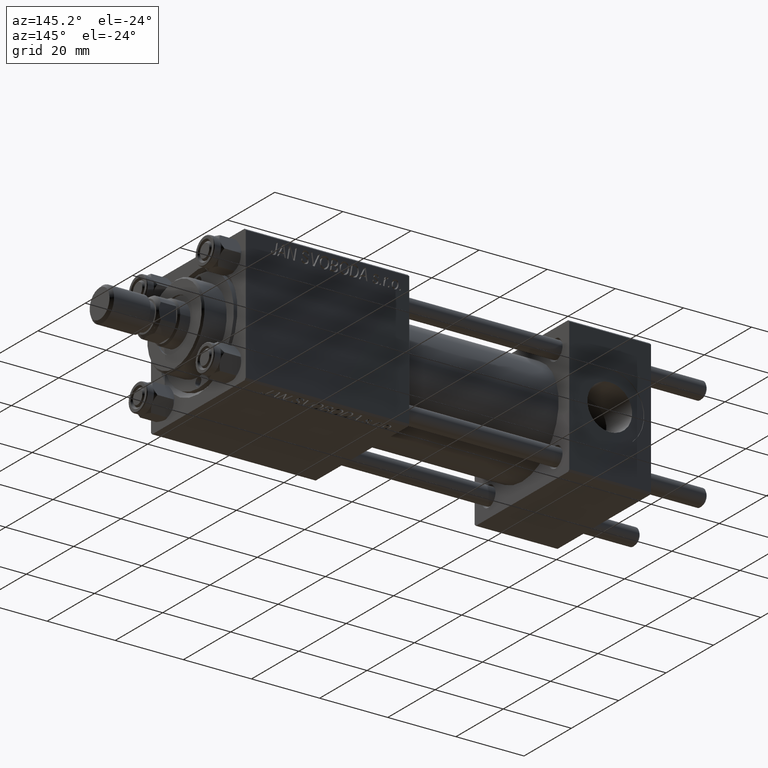
[diagram: clean part render]
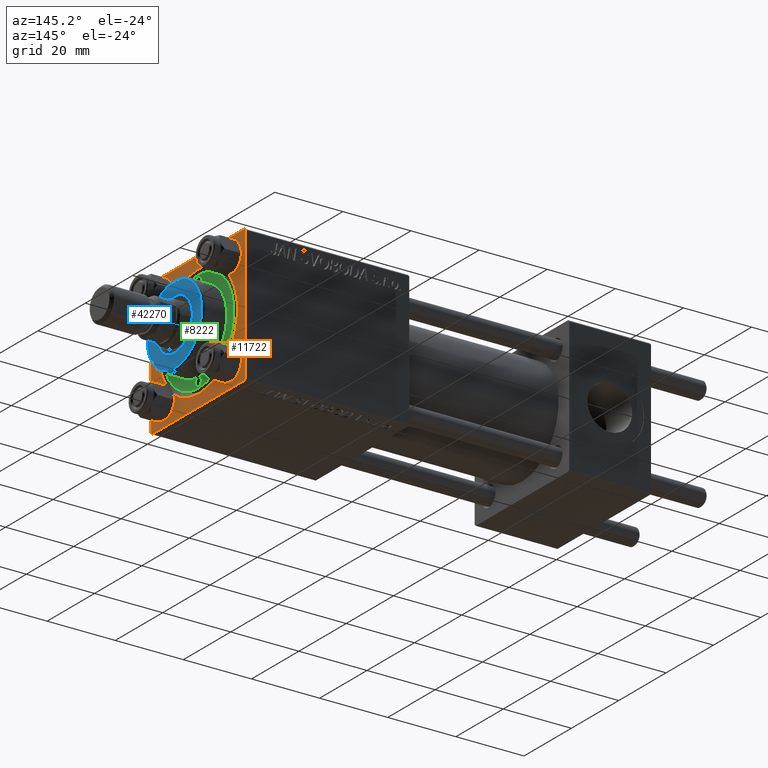
[diagram: same view with three faces highlighted in distinct colors, each labeled with its STEP entity id]
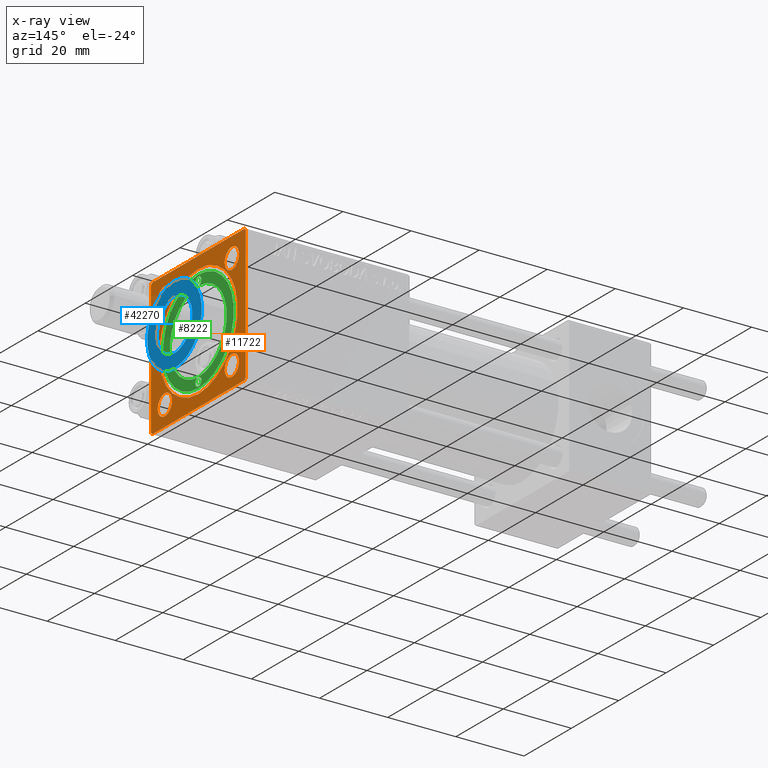
[diagram: x-ray of the same camera — body ghosted, the three highlighted faces saturated]
A machine part, auxiliary view with three faces highlighted in distinct colors.
The next image is the same camera in x-ray (body ghosted, the three faces saturated) — at least one of them is partly hidden behind the body in this view.
Their STEP definitions:

[orange] entity #11722 — the highlighted planar face has unit normal (-1, 0, 0).
#102 = CARTESIAN_POINT ( 'NONE',  ( 119.0000000000000142, 19.99999999999999645, 19.49999999999998579 ) ) ;
#202 = CARTESIAN_POINT ( 'NONE',  ( 119.0000000000000142, -14.15000000000000036, 14.15000000000000036 ) ) ;
#232 = DIRECTION ( 'NONE',  ( -1.000000000000000000, -0.000000000000000000, -0.000000000000000000 ) ) ;
#233 = AXIS2_PLACEMENT_3D ( 'NONE', #3433, #30212, #10837 ) ;
#550 = DIRECTION ( 'NONE',  ( -1.000000000000000000, 0.000000000000000000, -0.000000000000000000 ) ) ;
#1226 = DIRECTION ( 'NONE',  ( 0.000000000000000000, 0.000000000000000000, 1.000000000000000000 ) ) ;
#2215 = LINE ( 'NONE', #14462, #26203 ) ;
#2734 = ORIENTED_EDGE ( 'NONE', *, *, #3063, .F. ) ;
#2878 = CARTESIAN_POINT ( 'NONE',  ( 119.0000000000000142, 19.99999999999999645, 20.00000000000000000 ) ) ;
#3063 = EDGE_CURVE ( 'NONE', #4802, #45037, #41668, .T. ) ;
#3116 = ORIENTED_EDGE ( 'NONE', *, *, #39615, .T. ) ;
#3143 = VERTEX_POINT ( 'NONE', #14659 ) ;
#3227 = CARTESIAN_POINT ( 'NONE',  ( 119.0000000000000142, 14.15000000000000036, -17.15000000000000568 ) ) ;
#3344 = EDGE_CURVE ( 'NONE', #32667, #28821, #32698, .T. ) ;
#3433 = CARTESIAN_POINT ( 'NONE',  ( 119.0000000000000142, -14.15000000000000036, 14.15000000000000036 ) ) ;
#4269 = VERTEX_POINT ( 'NONE', #23030 ) ;
#4383 = CARTESIAN_POINT ( 'NONE',  ( 119.0000000000000142, -20.00000000000000355, 19.50000000000002487 ) ) ;
#4389 = FACE_BOUND ( 'NONE', #45448, .T. ) ;
#4636 = ORIENTED_EDGE ( 'NONE', *, *, #40410, .T. ) ;
#4641 = DIRECTION ( 'NONE',  ( -0.000000000000000000, 0.000000000000000000, 1.000000000000000000 ) ) ;
#4765 = AXIS2_PLACEMENT_3D ( 'NONE', #6879, #13770, #48656 ) ;
#4802 = VERTEX_POINT ( 'NONE', #41387 ) ;
#5086 = ORIENTED_EDGE ( 'NONE', *, *, #43988, .F. ) ;
#5395 = FACE_OUTER_BOUND ( 'NONE', #36737, .T. ) ;
#5467 = ORIENTED_EDGE ( 'NONE', *, *, #24741, .T. ) ;
#6566 = CARTESIAN_POINT ( 'NONE',  ( 119.0000000000000142, 2.020667218593134678E-15, 16.50000000000001421 ) ) ;
#6693 = DIRECTION ( 'NONE',  ( -1.000000000000000000, -0.000000000000000000, -0.000000000000000000 ) ) ;
#6740 = ORIENTED_EDGE ( 'NONE', *, *, #27288, .T. ) ;
#6879 = CARTESIAN_POINT ( 'NONE',  ( 119.0000000000000142, 14.15000000000000036, -14.15000000000000036 ) ) ;
#7041 = DIRECTION ( 'NONE',  ( -1.000000000000000000, -0.000000000000000000, -0.000000000000000000 ) ) ;
#7640 = ORIENTED_EDGE ( 'NONE', *, *, #24842, .T. ) ;
#7771 = EDGE_CURVE ( 'NONE', #31325, #25188, #26754, .T. ) ;
#7791 = DIRECTION ( 'NONE',  ( 0.000000000000000000, 0.000000000000000000, 1.000000000000000000 ) ) ;
#7955 = EDGE_CURVE ( 'NONE', #25188, #31325, #9708, .T. ) ;
#8151 = CARTESIAN_POINT ( 'NONE',  ( 119.0000000000000142, 0.000000000000000000, 0.000000000000000000 ) ) ;
#8298 = VECTOR ( 'NONE', #43779, 1000.000000000000114 ) ;
#8376 = AXIS2_PLACEMENT_3D ( 'NONE', #41946, #7041, #7791 ) ;
#8412 = DIRECTION ( 'NONE',  ( 0.000000000000000000, 0.000000000000000000, 1.000000000000000000 ) ) ;
#8798 = LINE ( 'NONE', #39628, #42551 ) ;
#9079 = EDGE_CURVE ( 'NONE', #28831, #45037, #10953, .T. ) ;
#9708 = CIRCLE ( 'NONE', #40624, 3.000000000000004441 ) ;
#10217 = ORIENTED_EDGE ( 'NONE', *, *, #3344, .T. ) ;
#10279 = LINE ( 'NONE', #2878, #33910 ) ;
#10660 = CARTESIAN_POINT ( 'NONE',  ( 119.0000000000000142, -20.00000000000000355, 19.99999999999999645 ) ) ;
#10837 = DIRECTION ( 'NONE',  ( 0.000000000000000000, 0.000000000000000000, 1.000000000000000000 ) ) ;
#10953 = LINE ( 'NONE', #18862, #12984 ) ;
#10989 = CARTESIAN_POINT ( 'NONE',  ( 119.0000000000000142, 14.15000000000000036, 17.15000000000000568 ) ) ;
#11722 = ADVANCED_FACE ( 'NONE', ( #39293, #27837, #4389, #47435, #40297, #5395 ), #12542, .F. ) ;
#11740 = ORIENTED_EDGE ( 'NONE', *, *, #45767, .T. ) ;
#11963 = VECTOR ( 'NONE', #49636, 1000.000000000000000 ) ;
#12294 = DIRECTION ( 'NONE',  ( -1.000000000000000000, -0.000000000000000000, -0.000000000000000000 ) ) ;
#12542 = PLANE ( 'NONE',  #38143 ) ;
#12863 = ORIENTED_EDGE ( 'NONE', *, *, #46158, .T. ) ;
#12906 = ORIENTED_EDGE ( 'NONE', *, *, #18812, .T. ) ;
#12984 = VECTOR ( 'NONE', #34377, 999.9999999999998863 ) ;
#13195 = CARTESIAN_POINT ( 'NONE',  ( 119.0000000000000142, -20.00000000000000355, 19.50000000000002487 ) ) ;
#13248 = CIRCLE ( 'NONE', #8376, 3.000000000000000888 ) ;
#13419 = ORIENTED_EDGE ( 'NONE', *, *, #40304, .T. ) ;
#13494 = VERTEX_POINT ( 'NONE', #4383 ) ;
#13622 = ORIENTED_EDGE ( 'NONE', *, *, #7955, .T. ) ;
#13770 = DIRECTION ( 'NONE',  ( -1.000000000000000000, -0.000000000000000000, -0.000000000000000000 ) ) ;
#14462 = CARTESIAN_POINT ( 'NONE',  ( 119.0000000000000142, 19.99999999999999645, -19.50000000000000000 ) ) ;
#14659 = CARTESIAN_POINT ( 'NONE',  ( 119.0000000000000142, -19.50000000000001776, 19.99999999999999645 ) ) ;
#14741 = EDGE_CURVE ( 'NONE', #45101, #4269, #35802, .T. ) ;
#15488 = AXIS2_PLACEMENT_3D ( 'NONE', #21150, #43304, #8412 ) ;
#15572 = ORIENTED_EDGE ( 'NONE', *, *, #39914, .T. ) ;
#15593 = EDGE_LOOP ( 'NONE', ( #11740, #13419 ) ) ;
#15986 = VERTEX_POINT ( 'NONE', #16879 ) ;
#16092 = AXIS2_PLACEMENT_3D ( 'NONE', #202, #6693, #26062 ) ;
#16693 = VERTEX_POINT ( 'NONE', #6566 ) ;
#16879 = CARTESIAN_POINT ( 'NONE',  ( 119.0000000000000142, 19.99999999999999645, -19.50000000000000000 ) ) ;
#16892 = AXIS2_PLACEMENT_3D ( 'NONE', #26873, #29930, #38572 ) ;
#17414 = DIRECTION ( 'NONE',  ( 0.000000000000000000, -0.7071067811865574537, 0.7071067811865376918 ) ) ;
#18376 = DIRECTION ( 'NONE',  ( -1.000000000000000000, -0.000000000000000000, -0.000000000000000000 ) ) ;
#18545 = CIRCLE ( 'NONE', #16092, 2.999999999999973355 ) ;
#18680 = EDGE_LOOP ( 'NONE', ( #4636, #3116 ) ) ;
#18732 = CARTESIAN_POINT ( 'NONE',  ( 119.0000000000000142, -14.15000000000000036, -11.14999999999999680 ) ) ;
#18812 = EDGE_CURVE ( 'NONE', #4269, #45101, #13248, .T. ) ;
#18862 = CARTESIAN_POINT ( 'NONE',  ( 119.0000000000000142, -19.50000000000002487, -20.00000000000000000 ) ) ;
#19284 = CIRCLE ( 'NONE', #44500, 3.000000000000004441 ) ;
#19440 = CARTESIAN_POINT ( 'NONE',  ( 119.0000000000000142, -14.15000000000000036, 11.15000000000002700 ) ) ;
#19948 = CARTESIAN_POINT ( 'NONE',  ( 119.0000000000000142, -14.15000000000000036, -14.15000000000000036 ) ) ;
#20357 = CARTESIAN_POINT ( 'NONE',  ( 119.0000000000000142, 14.15000000000000036, -14.15000000000000036 ) ) ;
#20604 = DIRECTION ( 'NONE',  ( -1.000000000000000000, -0.000000000000000000, -0.000000000000000000 ) ) ;
#21150 = CARTESIAN_POINT ( 'NONE',  ( 119.0000000000000142, 14.15000000000000036, 14.15000000000000036 ) ) ;
#21242 = CARTESIAN_POINT ( 'NONE',  ( 119.0000000000000142, 14.15000000000000036, -11.14999999999999680 ) ) ;
#21799 = VERTEX_POINT ( 'NONE', #19440 ) ;
#22214 = DIRECTION ( 'NONE',  ( 0.000000000000000000, 0.000000000000000000, 1.000000000000000000 ) ) ;
#23030 = CARTESIAN_POINT ( 'NONE',  ( 119.0000000000000142, 14.15000000000000036, 11.14999999999999858 ) ) ;
#24181 = DIRECTION ( 'NONE',  ( 0.000000000000000000, 0.000000000000000000, 1.000000000000000000 ) ) ;
#24251 = CARTESIAN_POINT ( 'NONE',  ( 119.0000000000000142, 0.000000000000000000, -16.50000000000001421 ) ) ;
#24449 = ORIENTED_EDGE ( 'NONE', *, *, #14741, .T. ) ;
#24684 = ORIENTED_EDGE ( 'NONE', *, *, #7771, .T. ) ;
#24741 = EDGE_CURVE ( 'NONE', #3143, #13494, #28739, .T. ) ;
#24842 = EDGE_CURVE ( 'NONE', #4802, #15986, #2215, .T. ) ;
#25188 = VERTEX_POINT ( 'NONE', #21242 ) ;
#25783 = CARTESIAN_POINT ( 'NONE',  ( 119.0000000000000142, 0.000000000000000000, 0.000000000000000000 ) ) ;
#25795 = CIRCLE ( 'NONE', #46106, 16.50000000000001421 ) ;
#26062 = DIRECTION ( 'NONE',  ( 0.000000000000000000, 0.000000000000000000, 1.000000000000000000 ) ) ;
#26203 = VECTOR ( 'NONE', #33811, 1000.000000000000114 ) ;
#26754 = CIRCLE ( 'NONE', #4765, 3.000000000000004441 ) ;
#26873 = CARTESIAN_POINT ( 'NONE',  ( 119.0000000000000142, -14.15000000000000036, -14.15000000000000036 ) ) ;
#27288 = EDGE_CURVE ( 'NONE', #33496, #21799, #42556, .T. ) ;
#27588 = CARTESIAN_POINT ( 'NONE',  ( 119.0000000000000142, 0.000000000000000000, 0.000000000000000000 ) ) ;
#27837 = FACE_BOUND ( 'NONE', #28227, .T. ) ;
#27916 = DIRECTION ( 'NONE',  ( 0.000000000000000000, -1.000000000000000000, -8.673617379884035472E-17 ) ) ;
#28227 = EDGE_LOOP ( 'NONE', ( #24684, #13622 ) ) ;
#28405 = VERTEX_POINT ( 'NONE', #43332 ) ;
#28739 = LINE ( 'NONE', #13195, #8298 ) ;
#28821 = VERTEX_POINT ( 'NONE', #47685 ) ;
#28831 = VERTEX_POINT ( 'NONE', #44626 ) ;
#29048 = CIRCLE ( 'NONE', #47729, 16.50000000000001421 ) ;
#29062 = VECTOR ( 'NONE', #17414, 999.9999999999998863 ) ;
#29930 = DIRECTION ( 'NONE',  ( -1.000000000000000000, -0.000000000000000000, -0.000000000000000000 ) ) ;
#30212 = DIRECTION ( 'NONE',  ( -1.000000000000000000, -0.000000000000000000, -0.000000000000000000 ) ) ;
#30235 = ORIENTED_EDGE ( 'NONE', *, *, #9079, .T. ) ;
#31325 = VERTEX_POINT ( 'NONE', #3227 ) ;
#31409 = DIRECTION ( 'NONE',  ( 0.000000000000000000, 0.000000000000000000, -1.000000000000000000 ) ) ;
#31773 = VERTEX_POINT ( 'NONE', #24251 ) ;
#32667 = VERTEX_POINT ( 'NONE', #102 ) ;
#32698 = LINE ( 'NONE', #37010, #29062 ) ;
#33496 = VERTEX_POINT ( 'NONE', #36017 ) ;
#33811 = DIRECTION ( 'NONE',  ( -0.000000000000000000, 0.7071067811865474617, 0.7071067811865474617 ) ) ;
#33910 = VECTOR ( 'NONE', #31409, 1000.000000000000000 ) ;
#34377 = DIRECTION ( 'NONE',  ( 0.000000000000000000, 0.7071067811865376918, -0.7071067811865574537 ) ) ;
#35122 = ORIENTED_EDGE ( 'NONE', *, *, #48434, .T. ) ;
#35802 = CIRCLE ( 'NONE', #15488, 3.000000000000000888 ) ;
#36017 = CARTESIAN_POINT ( 'NONE',  ( 119.0000000000000142, -14.15000000000000036, 17.14999999999997726 ) ) ;
#36172 = VERTEX_POINT ( 'NONE', #18732 ) ;
#36457 = DIRECTION ( 'NONE',  ( 0.000000000000000000, 0.000000000000000000, 1.000000000000000000 ) ) ;
#36737 = EDGE_LOOP ( 'NONE', ( #15572, #30235, #2734, #7640, #5086, #10217, #35122, #5467 ) ) ;
#37010 = CARTESIAN_POINT ( 'NONE',  ( 119.0000000000000142, 19.49999999999996803, 20.00000000000000000 ) ) ;
#37157 = VECTOR ( 'NONE', #50067, 1000.000000000000000 ) ;
#38143 = AXIS2_PLACEMENT_3D ( 'NONE', #27588, #550, #4641 ) ;
#38416 = LINE ( 'NONE', #10660, #11963 ) ;
#38572 = DIRECTION ( 'NONE',  ( 0.000000000000000000, 0.000000000000000000, 1.000000000000000000 ) ) ;
#39293 = FACE_BOUND ( 'NONE', #15593, .T. ) ;
#39615 = EDGE_CURVE ( 'NONE', #16693, #31773, #25795, .T. ) ;
#39628 = CARTESIAN_POINT ( 'NONE',  ( 119.0000000000000142, 19.99999999999999645, 20.00000000000000000 ) ) ;
#39914 = EDGE_CURVE ( 'NONE', #13494, #28831, #38416, .T. ) ;
#40297 = FACE_BOUND ( 'NONE', #18680, .T. ) ;
#40304 = EDGE_CURVE ( 'NONE', #36172, #28405, #19284, .T. ) ;
#40410 = EDGE_CURVE ( 'NONE', #31773, #16693, #29048, .T. ) ;
#40624 = AXIS2_PLACEMENT_3D ( 'NONE', #20357, #20604, #24181 ) ;
#41387 = CARTESIAN_POINT ( 'NONE',  ( 119.0000000000000142, 19.49999999999999645, -20.00000000000000000 ) ) ;
#41668 = LINE ( 'NONE', #45729, #37157 ) ;
#41946 = CARTESIAN_POINT ( 'NONE',  ( 119.0000000000000142, 14.15000000000000036, 14.15000000000000036 ) ) ;
#42551 = VECTOR ( 'NONE', #27916, 1000.000000000000000 ) ;
#42556 = CIRCLE ( 'NONE', #233, 2.999999999999973355 ) ;
#43304 = DIRECTION ( 'NONE',  ( -1.000000000000000000, -0.000000000000000000, -0.000000000000000000 ) ) ;
#43332 = CARTESIAN_POINT ( 'NONE',  ( 119.0000000000000142, -14.15000000000000036, -17.15000000000000568 ) ) ;
#43779 = DIRECTION ( 'NONE',  ( -0.000000000000000000, -0.7071067811865573427, -0.7071067811865376918 ) ) ;
#43988 = EDGE_CURVE ( 'NONE', #32667, #15986, #10279, .T. ) ;
#44500 = AXIS2_PLACEMENT_3D ( 'NONE', #19948, #12294, #36457 ) ;
#44626 = CARTESIAN_POINT ( 'NONE',  ( 119.0000000000000142, -20.00000000000000000, -19.50000000000001066 ) ) ;
#45037 = VERTEX_POINT ( 'NONE', #49711 ) ;
#45101 = VERTEX_POINT ( 'NONE', #10989 ) ;
#45448 = EDGE_LOOP ( 'NONE', ( #12906, #24449 ) ) ;
#45729 = CARTESIAN_POINT ( 'NONE',  ( 119.0000000000000142, 19.99999999999999645, -20.00000000000000000 ) ) ;
#45767 = EDGE_CURVE ( 'NONE', #28405, #36172, #47802, .T. ) ;
#46106 = AXIS2_PLACEMENT_3D ( 'NONE', #8151, #232, #1226 ) ;
#46158 = EDGE_CURVE ( 'NONE', #21799, #33496, #18545, .T. ) ;
#46707 = EDGE_LOOP ( 'NONE', ( #12863, #6740 ) ) ;
#47435 = FACE_BOUND ( 'NONE', #46707, .T. ) ;
#47685 = CARTESIAN_POINT ( 'NONE',  ( 119.0000000000000142, 19.49999999999996803, 20.00000000000000000 ) ) ;
#47729 = AXIS2_PLACEMENT_3D ( 'NONE', #25783, #18376, #22214 ) ;
#47802 = CIRCLE ( 'NONE', #16892, 3.000000000000004441 ) ;
#48434 = EDGE_CURVE ( 'NONE', #28821, #3143, #8798, .T. ) ;
#48656 = DIRECTION ( 'NONE',  ( 0.000000000000000000, 0.000000000000000000, 1.000000000000000000 ) ) ;
#49636 = DIRECTION ( 'NONE',  ( 0.000000000000000000, 8.673617379884036705E-17, -1.000000000000000000 ) ) ;
#49711 = CARTESIAN_POINT ( 'NONE',  ( 119.0000000000000142, -19.50000000000002487, -20.00000000000000000 ) ) ;
#50067 = DIRECTION ( 'NONE',  ( 0.000000000000000000, -1.000000000000000000, 0.000000000000000000 ) ) ;

[blue] entity #42270 — the highlighted planar face has unit normal (1, 0, -0).
#2022 = ORIENTED_EDGE ( 'NONE', *, *, #17014, .T. ) ;
#2479 = VERTEX_POINT ( 'NONE', #14533 ) ;
#3256 = CARTESIAN_POINT ( 'NONE',  ( 0.000000000000000000, 0.000000000000000000, 35.70000000000000284 ) ) ;
#3273 = CIRCLE ( 'NONE', #27687, 7.500000000000000888 ) ;
#4734 = DIRECTION ( 'NONE',  ( 1.000000000000000000, 0.000000000000000000, 0.000000000000000000 ) ) ;
#6460 = VERTEX_POINT ( 'NONE', #15761 ) ;
#7244 = AXIS2_PLACEMENT_3D ( 'NONE', #3256, #34338, #42255 ) ;
#8218 = CIRCLE ( 'NONE', #43195, 11.49999999999999645 ) ;
#8809 = DIRECTION ( 'NONE',  ( 0.000000000000000000, 0.000000000000000000, 1.000000000000000000 ) ) ;
#9666 = CIRCLE ( 'NONE', #7244, 7.500000000000000888 ) ;
#11326 = DIRECTION ( 'NONE',  ( 1.000000000000000000, 0.000000000000000000, 0.000000000000000000 ) ) ;
#11348 = EDGE_CURVE ( 'NONE', #34744, #30379, #9666, .T. ) ;
#12138 = CARTESIAN_POINT ( 'NONE',  ( 0.000000000000000000, 0.000000000000000000, 35.70000000000000284 ) ) ;
#12823 = AXIS2_PLACEMENT_3D ( 'NONE', #22473, #33159, #37983 ) ;
#13629 = CIRCLE ( 'NONE', #12823, 11.49999999999999645 ) ;
#14533 = CARTESIAN_POINT ( 'NONE',  ( -11.49999999999999645, 0.000000000000000000, 35.70000000000000284 ) ) ;
#15143 = DIRECTION ( 'NONE',  ( 0.000000000000000000, 0.000000000000000000, 1.000000000000000000 ) ) ;
#15155 = AXIS2_PLACEMENT_3D ( 'NONE', #29413, #48510, #32728 ) ;
#15761 = CARTESIAN_POINT ( 'NONE',  ( 11.49999999999999645, 1.438959988998139963E-15, 35.70000000000000284 ) ) ;
#16745 = ORIENTED_EDGE ( 'NONE', *, *, #20651, .F. ) ;
#17014 = EDGE_CURVE ( 'NONE', #6460, #2479, #8218, .T. ) ;
#17185 = FACE_OUTER_BOUND ( 'NONE', #17717, .T. ) ;
#17695 = PLANE ( 'NONE',  #15155 ) ;
#17717 = EDGE_LOOP ( 'NONE', ( #25979, #2022 ) ) ;
#20420 = EDGE_LOOP ( 'NONE', ( #16745, #23009 ) ) ;
#20651 = EDGE_CURVE ( 'NONE', #30379, #34744, #3273, .T. ) ;
#22473 = CARTESIAN_POINT ( 'NONE',  ( 0.000000000000000000, 0.000000000000000000, 35.70000000000000284 ) ) ;
#23009 = ORIENTED_EDGE ( 'NONE', *, *, #11348, .F. ) ;
#25979 = ORIENTED_EDGE ( 'NONE', *, *, #45028, .T. ) ;
#27687 = AXIS2_PLACEMENT_3D ( 'NONE', #50051, #15143, #11326 ) ;
#29413 = CARTESIAN_POINT ( 'NONE',  ( 0.000000000000000000, 0.000000000000000000, 35.70000000000000284 ) ) ;
#29990 = CARTESIAN_POINT ( 'NONE',  ( 7.500000000000000888, 0.000000000000000000, 35.70000000000000284 ) ) ;
#30379 = VERTEX_POINT ( 'NONE', #29990 ) ;
#32110 = CARTESIAN_POINT ( 'NONE',  ( -7.500000000000000888, 9.184850993605149917E-16, 35.70000000000000284 ) ) ;
#32728 = DIRECTION ( 'NONE',  ( 1.000000000000000000, 0.000000000000000000, -0.000000000000000000 ) ) ;
#33159 = DIRECTION ( 'NONE',  ( 0.000000000000000000, 0.000000000000000000, 1.000000000000000000 ) ) ;
#34338 = DIRECTION ( 'NONE',  ( 0.000000000000000000, 0.000000000000000000, 1.000000000000000000 ) ) ;
#34744 = VERTEX_POINT ( 'NONE', #32110 ) ;
#37036 = FACE_BOUND ( 'NONE', #20420, .T. ) ;
#37983 = DIRECTION ( 'NONE',  ( 1.000000000000000000, 0.000000000000000000, 0.000000000000000000 ) ) ;
#42255 = DIRECTION ( 'NONE',  ( 1.000000000000000000, 0.000000000000000000, 0.000000000000000000 ) ) ;
#42270 = ADVANCED_FACE ( 'NONE', ( #37036, #17185 ), #17695, .T. ) ;
#43195 = AXIS2_PLACEMENT_3D ( 'NONE', #12138, #8809, #4734 ) ;
#45028 = EDGE_CURVE ( 'NONE', #2479, #6460, #13629, .T. ) ;
#48510 = DIRECTION ( 'NONE',  ( 0.000000000000000000, 0.000000000000000000, 1.000000000000000000 ) ) ;
#50051 = CARTESIAN_POINT ( 'NONE',  ( 0.000000000000000000, 0.000000000000000000, 35.70000000000000284 ) ) ;

[green] entity #8222 — the highlighted planar face has unit normal (1, 0, -0).
#609 = EDGE_CURVE ( 'NONE', #23426, #23843, #25737, .T. ) ;
#1347 = CARTESIAN_POINT ( 'NONE',  ( -13.25000000000000178, 0.000000000000000000, 28.69999999999999929 ) ) ;
#2181 = CARTESIAN_POINT ( 'NONE',  ( 13.25000000000000000, 0.000000000000000000, 28.69999999999999929 ) ) ;
#2757 = VERTEX_POINT ( 'NONE', #17788 ) ;
#3749 = AXIS2_PLACEMENT_3D ( 'NONE', #2181, #9585, #25655 ) ;
#3891 = CARTESIAN_POINT ( 'NONE',  ( 12.00000000000000178, 0.000000000000000000, 28.69999999999999929 ) ) ;
#4640 = CIRCLE ( 'NONE', #47768, 15.00000000000000000 ) ;
#4982 = PLANE ( 'NONE',  #34903 ) ;
#5297 = CIRCLE ( 'NONE', #17484, 1.249999999999997558 ) ;
#6756 = AXIS2_PLACEMENT_3D ( 'NONE', #50086, #15183, #35035 ) ;
#8222 = ADVANCED_FACE ( 'NONE', ( #48030, #47282 ), #4982, .T. ) ;
#8864 = EDGE_LOOP ( 'NONE', ( #15388, #26166 ) ) ;
#9434 = EDGE_CURVE ( 'NONE', #46020, #29738, #35738, .T. ) ;
#9585 = DIRECTION ( 'NONE',  ( 0.000000000000000000, 0.000000000000000000, 1.000000000000000000 ) ) ;
#9615 = DIRECTION ( 'NONE',  ( 0.000000000000000000, 0.000000000000000000, 1.000000000000000000 ) ) ;
#9929 = CARTESIAN_POINT ( 'NONE',  ( 14.49999999999999822, 0.000000000000000000, 28.69999999999999929 ) ) ;
#10917 = CARTESIAN_POINT ( 'NONE',  ( -12.00000000000000178, 0.000000000000000000, 28.69999999999999929 ) ) ;
#11263 = ORIENTED_EDGE ( 'NONE', *, *, #609, .F. ) ;
#12234 = DIRECTION ( 'NONE',  ( 1.000000000000000000, 0.000000000000000000, 0.000000000000000000 ) ) ;
#13132 = DIRECTION ( 'NONE',  ( 0.000000000000000000, 0.000000000000000000, 1.000000000000000000 ) ) ;
#14190 = AXIS2_PLACEMENT_3D ( 'NONE', #49626, #41490, #14231 ) ;
#14231 = DIRECTION ( 'NONE',  ( 1.000000000000000000, 0.000000000000000000, 0.000000000000000000 ) ) ;
#15183 = DIRECTION ( 'NONE',  ( 0.000000000000000000, 0.000000000000000000, 1.000000000000000000 ) ) ;
#15388 = ORIENTED_EDGE ( 'NONE', *, *, #40618, .T. ) ;
#16883 = CARTESIAN_POINT ( 'NONE',  ( 15.00000000000000000, 1.836970198721029589E-15, 28.69999999999999929 ) ) ;
#17162 = AXIS2_PLACEMENT_3D ( 'NONE', #1347, #17928, #32452 ) ;
#17484 = AXIS2_PLACEMENT_3D ( 'NONE', #21611, #9615, #37115 ) ;
#17788 = CARTESIAN_POINT ( 'NONE',  ( -14.49999999999999822, 1.530808498934190585E-16, 28.69999999999999929 ) ) ;
#17928 = DIRECTION ( 'NONE',  ( 0.000000000000000000, 0.000000000000000000, 1.000000000000000000 ) ) ;
#18773 = EDGE_CURVE ( 'NONE', #23843, #23426, #39287, .T. ) ;
#19406 = ORIENTED_EDGE ( 'NONE', *, *, #35889, .F. ) ;
#20457 = CIRCLE ( 'NONE', #17162, 1.249999999999997558 ) ;
#21611 = CARTESIAN_POINT ( 'NONE',  ( -13.25000000000000178, 0.000000000000000000, 28.69999999999999929 ) ) ;
#22453 = ORIENTED_EDGE ( 'NONE', *, *, #22502, .F. ) ;
#22502 = EDGE_CURVE ( 'NONE', #40845, #2757, #20457, .T. ) ;
#22505 = ORIENTED_EDGE ( 'NONE', *, *, #18773, .F. ) ;
#23426 = VERTEX_POINT ( 'NONE', #3891 ) ;
#23843 = VERTEX_POINT ( 'NONE', #9929 ) ;
#24382 = DIRECTION ( 'NONE',  ( 1.000000000000000000, 0.000000000000000000, 0.000000000000000000 ) ) ;
#25655 = DIRECTION ( 'NONE',  ( 1.000000000000000000, 0.000000000000000000, 0.000000000000000000 ) ) ;
#25737 = CIRCLE ( 'NONE', #3749, 1.249999999999999334 ) ;
#26166 = ORIENTED_EDGE ( 'NONE', *, *, #9434, .T. ) ;
#26345 = AXIS2_PLACEMENT_3D ( 'NONE', #39156, #32011, #24382 ) ;
#27522 = DIRECTION ( 'NONE',  ( 0.000000000000000000, 0.000000000000000000, 1.000000000000000000 ) ) ;
#28174 = CARTESIAN_POINT ( 'NONE',  ( 0.000000000000000000, 0.000000000000000000, 28.69999999999999929 ) ) ;
#29738 = VERTEX_POINT ( 'NONE', #41325 ) ;
#31205 = CARTESIAN_POINT ( 'NONE',  ( 0.000000000000000000, 0.000000000000000000, 28.69999999999999929 ) ) ;
#31600 = CARTESIAN_POINT ( 'NONE',  ( 0.000000000000000000, 0.000000000000000000, 28.69999999999999929 ) ) ;
#32011 = DIRECTION ( 'NONE',  ( 0.000000000000000000, 0.000000000000000000, 1.000000000000000000 ) ) ;
#32243 = EDGE_CURVE ( 'NONE', #40845, #23426, #48286, .T. ) ;
#32452 = DIRECTION ( 'NONE',  ( 1.000000000000000000, 0.000000000000000000, 0.000000000000000000 ) ) ;
#33071 = EDGE_CURVE ( 'NONE', #23426, #40845, #48322, .T. ) ;
#33484 = EDGE_LOOP ( 'NONE', ( #42835, #19406, #22453, #39324, #22505, #11263 ) ) ;
#34903 = AXIS2_PLACEMENT_3D ( 'NONE', #28174, #13132, #43713 ) ;
#35035 = DIRECTION ( 'NONE',  ( 1.000000000000000000, 0.000000000000000000, 0.000000000000000000 ) ) ;
#35738 = CIRCLE ( 'NONE', #44689, 15.00000000000000000 ) ;
#35889 = EDGE_CURVE ( 'NONE', #2757, #40845, #5297, .T. ) ;
#37115 = DIRECTION ( 'NONE',  ( 1.000000000000000000, 0.000000000000000000, 0.000000000000000000 ) ) ;
#38081 = DIRECTION ( 'NONE',  ( 0.000000000000000000, 0.000000000000000000, 1.000000000000000000 ) ) ;
#39156 = CARTESIAN_POINT ( 'NONE',  ( 0.000000000000000000, 0.000000000000000000, 28.69999999999999929 ) ) ;
#39287 = CIRCLE ( 'NONE', #6756, 1.249999999999999334 ) ;
#39324 = ORIENTED_EDGE ( 'NONE', *, *, #33071, .F. ) ;
#40618 = EDGE_CURVE ( 'NONE', #29738, #46020, #4640, .T. ) ;
#40845 = VERTEX_POINT ( 'NONE', #10917 ) ;
#41325 = CARTESIAN_POINT ( 'NONE',  ( -15.00000000000000000, 0.000000000000000000, 28.69999999999999929 ) ) ;
#41490 = DIRECTION ( 'NONE',  ( 0.000000000000000000, 0.000000000000000000, 1.000000000000000000 ) ) ;
#42835 = ORIENTED_EDGE ( 'NONE', *, *, #32243, .F. ) ;
#42915 = DIRECTION ( 'NONE',  ( 1.000000000000000000, 0.000000000000000000, 0.000000000000000000 ) ) ;
#43713 = DIRECTION ( 'NONE',  ( 1.000000000000000000, 0.000000000000000000, -0.000000000000000000 ) ) ;
#44689 = AXIS2_PLACEMENT_3D ( 'NONE', #31205, #38081, #42915 ) ;
#46020 = VERTEX_POINT ( 'NONE', #16883 ) ;
#47282 = FACE_OUTER_BOUND ( 'NONE', #8864, .T. ) ;
#47768 = AXIS2_PLACEMENT_3D ( 'NONE', #31600, #27522, #12234 ) ;
#48030 = FACE_BOUND ( 'NONE', #33484, .T. ) ;
#48286 = CIRCLE ( 'NONE', #26345, 12.00000000000000178 ) ;
#48322 = CIRCLE ( 'NONE', #14190, 12.00000000000000178 ) ;
#49626 = CARTESIAN_POINT ( 'NONE',  ( 0.000000000000000000, 0.000000000000000000, 28.69999999999999929 ) ) ;
#50086 = CARTESIAN_POINT ( 'NONE',  ( 13.25000000000000000, 0.000000000000000000, 28.69999999999999929 ) ) ;